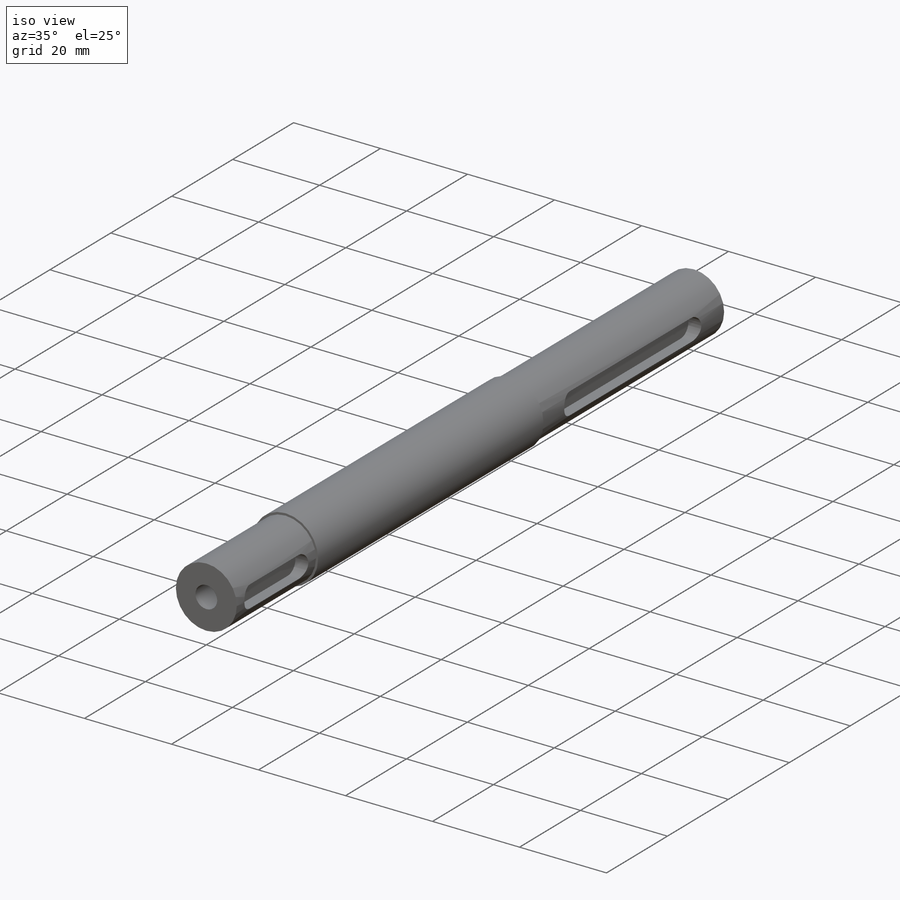
[diagram: iso view]
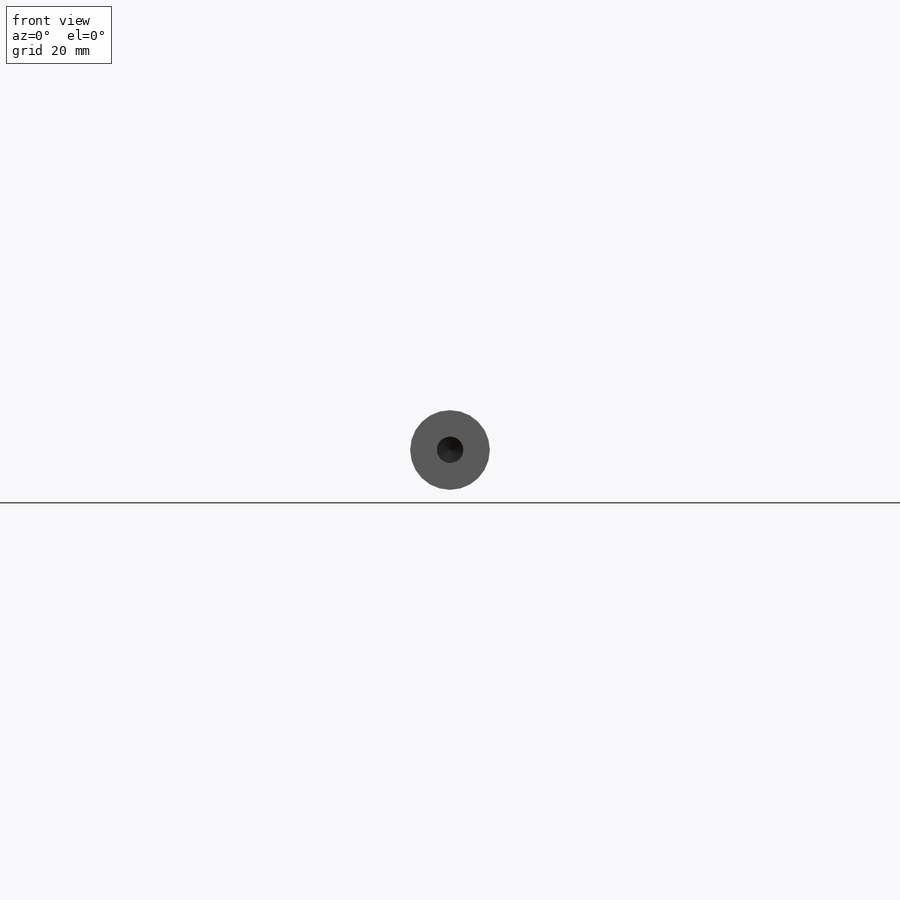
[diagram: front view]
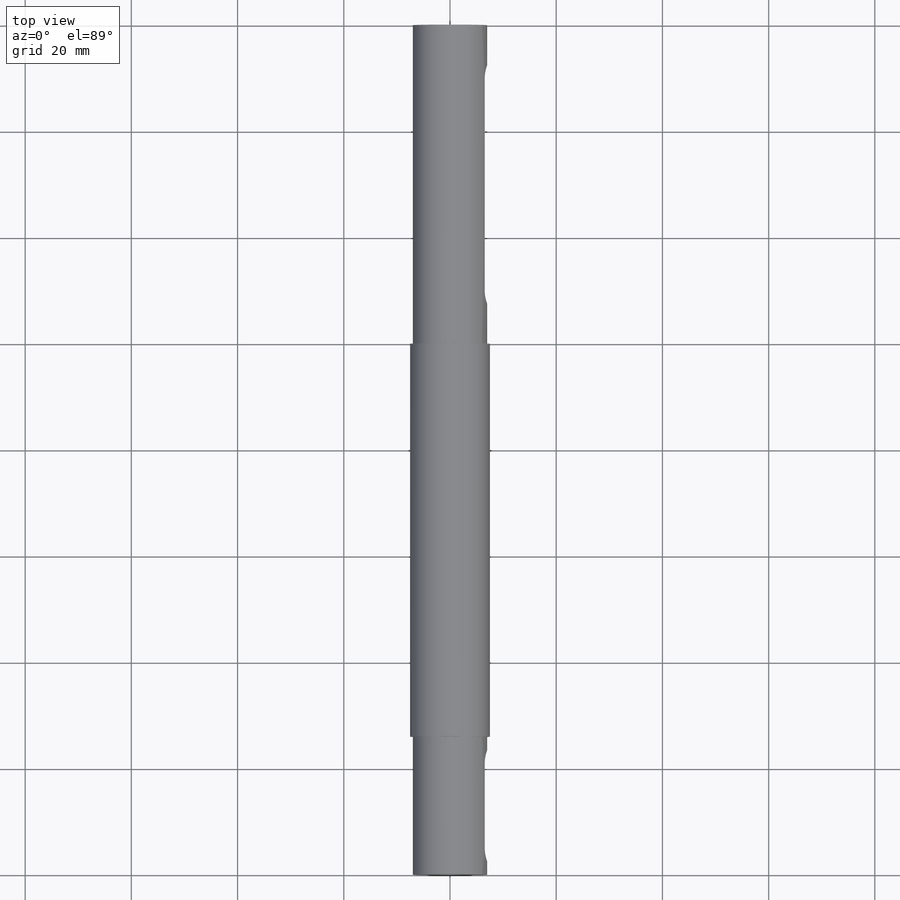
[diagram: top view]
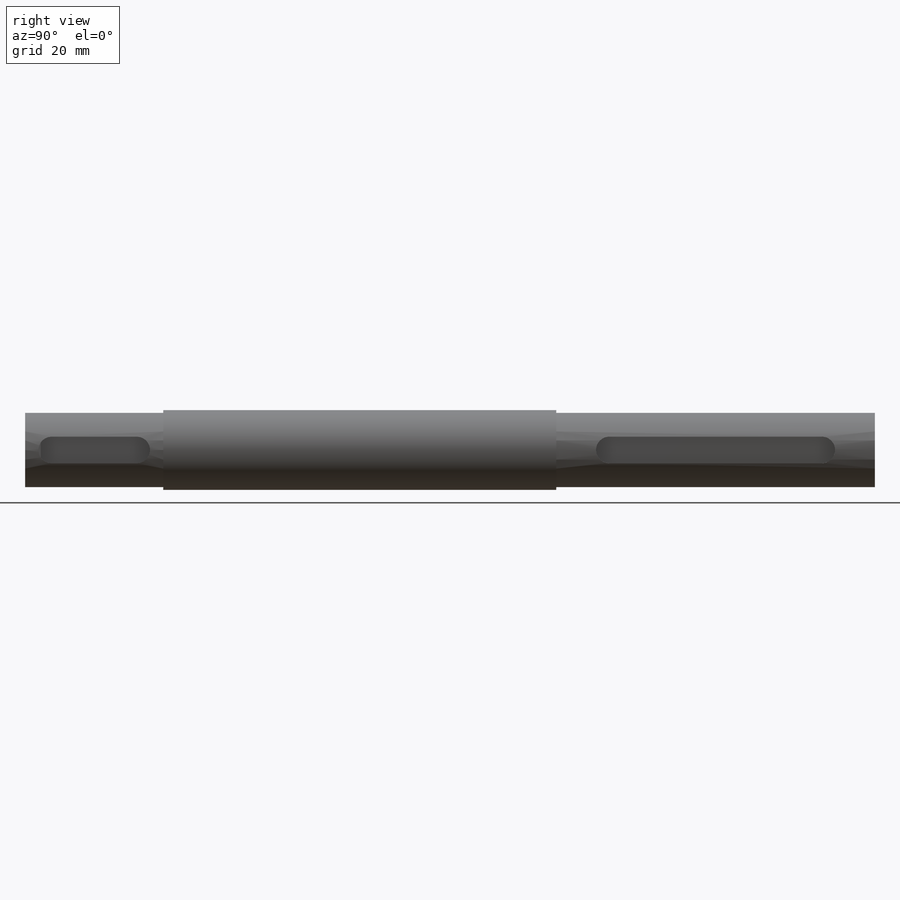
[diagram: right view]
SOLIDWORKS PART (.sldprt)
format: sldprt  version: not decoded by parser v0  size: 281,088 bytes
history: native  units: mm
features: sketch x10, plane x4, extrude x4, cut_extrude x2, hole x2, material x1 (+10 scaffold rows collapsed)
feature tree (33):
  scaffold x10  (default folders/planes/origin — collapsed)
  material  "Matériau <non spécifié>"
  plane  "Plan de face"
  plane  "Plan de dessus"
  plane  "Plan de droite"
  sketch  "Esquisse1"  dims[D1=14.0mm]
  extrude  "Boss.-Extru.1"  Depth=60mm
  sketch  "Esquisse3"  dims[D1=15.0mm]
  extrude  "Boss.-Extru.2"  Depth=62mm
  sketch  "Esquisse4"  dims[D1=6.0mm]
  extrude  "Boss.-Extru.3"  Depth=12mm
  sketch  "Esquisse5"  dims[D1=14.0mm]
  extrude  "Boss.-Extru.4"  Depth=26mm
  plane  "Plan1"  Offset=7mm
  sketch  "Esquisse7"  dims[c1.D1=~1.017464mm c1.D2=2.5mm c1.D3=2.5mm c2.D1=5.0mm c2.D2=16.0mm c2.D3=5.0mm c2.D4=4.5mm]
  cut_extrude  "Enlèv. mat.-Extru.1"  Depth=2.96mm
  sketch  "Esquisse8"  dims[D1=10.0mm D2=10.0mm D3=40.0mm]
  cut_extrude  "Enlèv. mat.-Extru.2"  Depth=2.96mm
  hole  "Trou pour taraudage pour trou taraudé M61"  Diameter=5mm Depth=15mm
  sketch  "Esquisse10"
  sketch  "Esquisse9"  dims[hole-wizard template sketch: 47 standard entries collapsed; hole parameters kept: c15.Profondeur du perçage=15.0mm c15.D3=~14.816244mm c15.Angle de pointe=118.0deg]
  hole  "Trou pour taraudage pour trou taraudé M62"  Diameter=5mm Depth=15mm
  sketch  "Esquisse12"
  sketch  "Esquisse11"  dims[hole-wizard template sketch: 47 standard entries collapsed; hole parameters kept: c15.Profondeur du perçage=15.0mm c15.D3=~14.816244mm c15.Angle de pointe=118.0deg]
decode coverage: 16 of 18 modeling features carry decoded parameters
note: ~ marks probable driven/reference dimensions
note: suppression state not decoded; provenance and decode notes live in map.json
